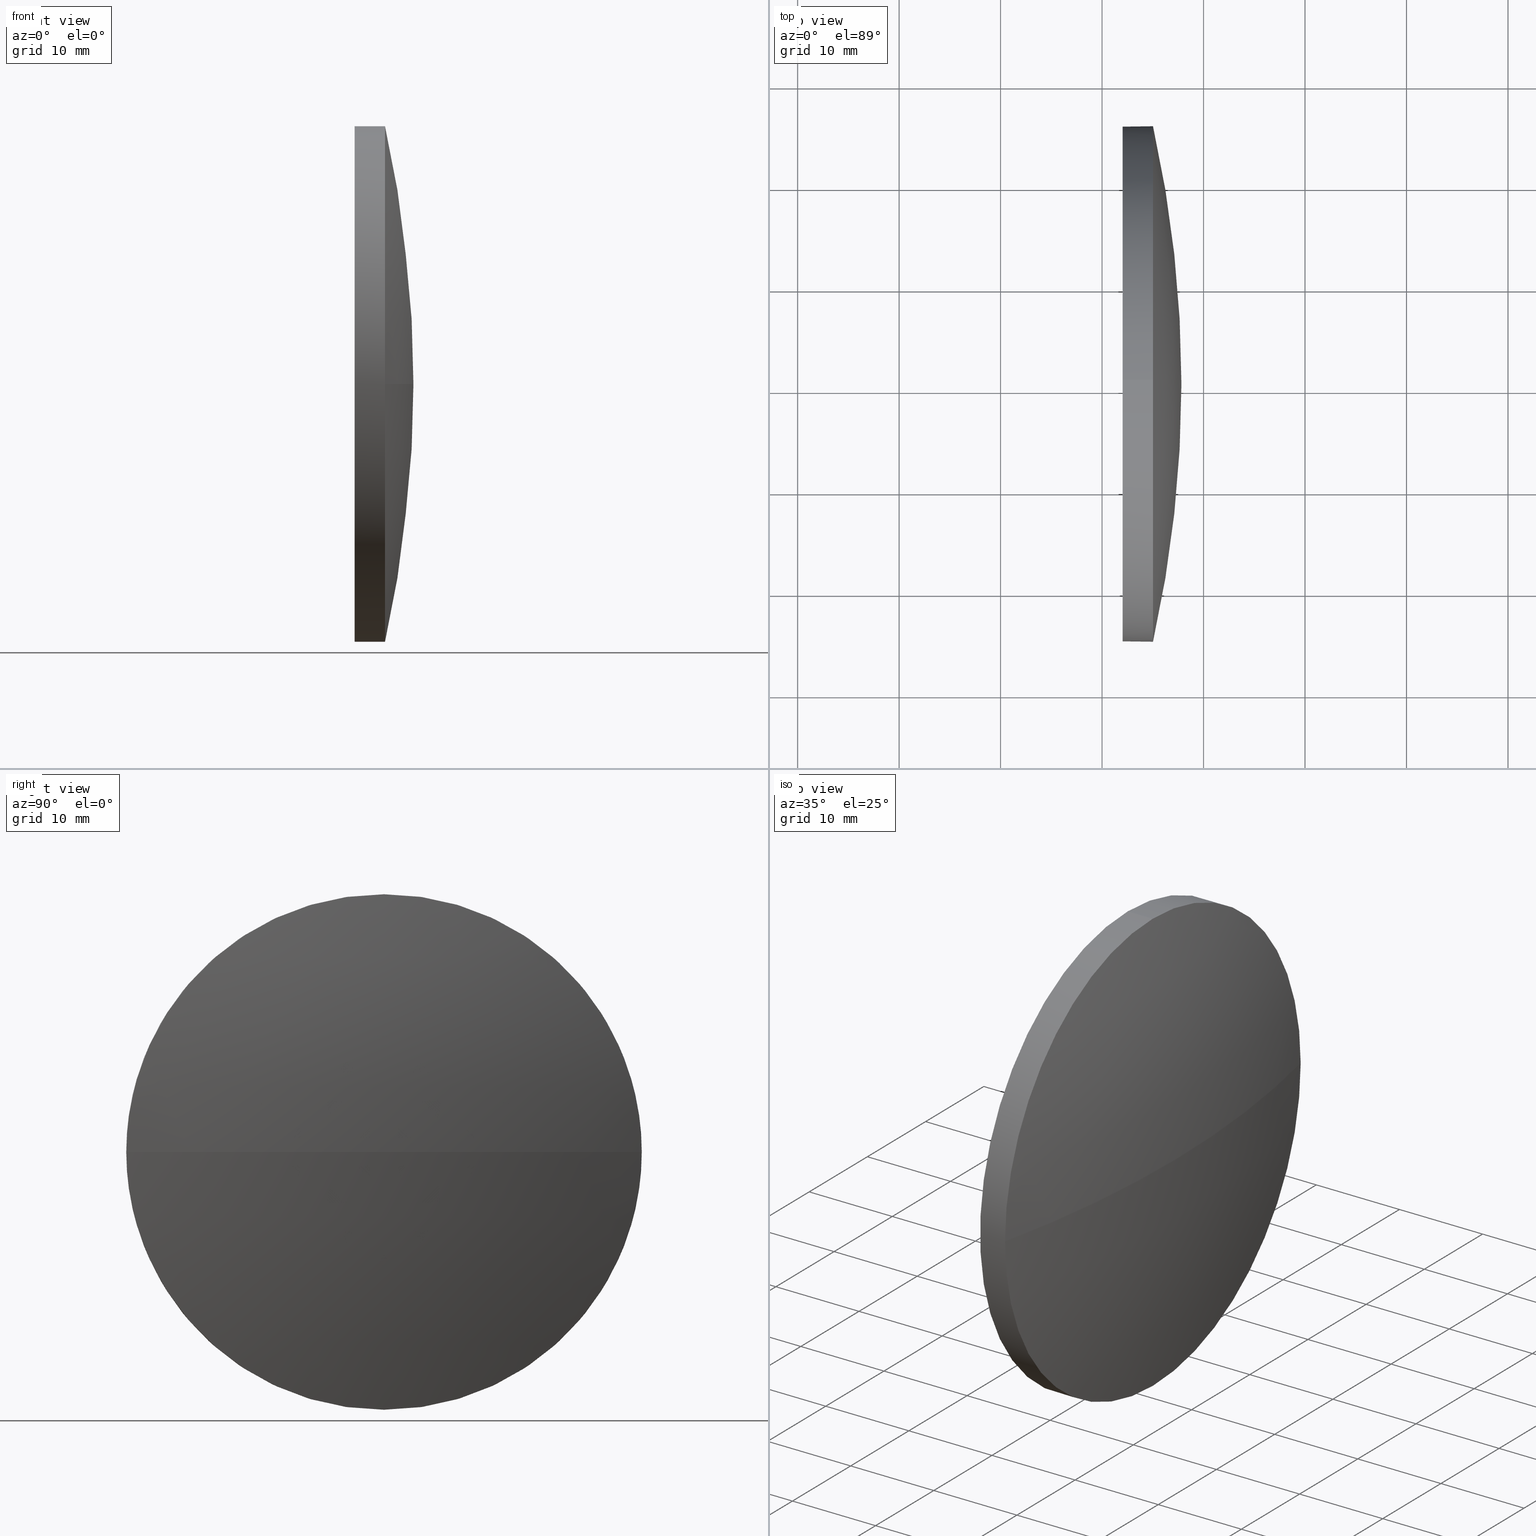
[diagram: canonical four-view strip — front | top / right | iso, engineering-drawing reading convention]
A machine part, canonical four-view strip (front | top / right | iso — engineering-drawing reading convention). The complete STEP part file that produces these views, byte-faithful:
ISO-10303-21;
HEADER;
FILE_DESCRIPTION (( 'STEP AP214' ),
    '1' );
FILE_NAME ('100389.STEP',
    '2019-06-05T01:56:00',
    ( '' ),
    ( '' ),
    'SwSTEP 2.0',
    'SolidWorks 2016',
    '' );
FILE_SCHEMA (( 'AUTOMOTIVE_DESIGN' ));
ENDSEC;

DATA;
#1 = CIRCLE ( 'NONE', #3, 25.40000000000000600 ) ;
#2 = CARTESIAN_POINT ( 'NONE',  ( 232.0208200792423800, 130.4671098528243900, 0.0000000000000000000 ) ) ;
#3 = AXIS2_PLACEMENT_3D ( 'NONE', #109, #163, #108 ) ;
#4 = DIRECTION ( 'NONE',  ( -1.000000000000000000, -0.0000000000000000000, -0.0000000000000000000 ) ) ;
#5 = CARTESIAN_POINT ( 'NONE',  ( 235.0208200792423800, 130.4671098528243900, 0.0000000000000000000 ) ) ;
#6 = DIRECTION ( 'NONE',  ( -1.000000000000000000, -0.0000000000000000000, -0.0000000000000000000 ) ) ;
#7 = EDGE_LOOP ( 'NONE', ( #86, #172, #168, #55 ) ) ;
#8 = ADVANCED_FACE ( 'NONE', ( #96 ), #65, .T. ) ;
#9 =( LENGTH_UNIT ( ) NAMED_UNIT ( * ) SI_UNIT ( .MILLI., .METRE. ) );
#10 = ADVANCED_FACE ( 'NONE', ( #133 ), #153, .T. ) ;
#11 = AXIS2_PLACEMENT_3D ( 'NONE', #5, #113, #161 ) ;
#12 = DIRECTION ( 'NONE',  ( -1.000000000000000000, -0.0000000000000000000, -0.0000000000000000000 ) ) ;
#13 = UNCERTAINTY_MEASURE_WITH_UNIT (LENGTH_MEASURE( 1.000000000000000100E-005 ), #9, 'distance_accuracy_value', 'NONE');
#14 = DIRECTION ( 'NONE',  ( 0.0000000000000000000, 0.0000000000000000000, 1.000000000000000000 ) ) ;
#15 =( NAMED_UNIT ( * ) PLANE_ANGLE_UNIT ( ) SI_UNIT ( $, .RADIAN. ) );
#16 = DIRECTION ( 'NONE',  ( -1.000000000000000000, -0.0000000000000000000, -0.0000000000000000000 ) ) ;
#17 = FACE_OUTER_BOUND ( 'NONE', #104, .T. ) ;
#18 = AXIS2_PLACEMENT_3D ( 'NONE', #2, #16, #93 ) ;
#19 = ORIENTED_EDGE ( 'NONE', *, *, #53, .F. ) ;
#20 = STYLED_ITEM ( 'NONE', ( #89 ), #88 ) ;
#21 = ADVANCED_FACE ( 'NONE', ( #17 ), #159, .F. ) ;
#22 = MECHANICAL_DESIGN_GEOMETRIC_PRESENTATION_REPRESENTATION (  '', ( #20 ), #31 ) ;
#23 = ORIENTED_EDGE ( 'NONE', *, *, #182, .F. ) ;
#24 = AXIS2_PLACEMENT_3D ( 'NONE', #150, #67, #122 ) ;
#25 = CARTESIAN_POINT ( 'NONE',  ( 121.2136772220999200, 130.4671098528243900, 0.0000000000000000000 ) ) ;
#26 = CARTESIAN_POINT ( 'NONE',  ( 220.3307464569769000, 130.4671098528243900, 0.0000000000000000000 ) ) ;
#27 = PRODUCT_DEFINITION_FORMATION_WITH_SPECIFIED_SOURCE ( '�κ�', '', #169, .NOT_KNOWN. ) ;
#28 = DIRECTION ( 'NONE',  ( -1.000000000000000000, -0.0000000000000000000, -0.0000000000000000000 ) ) ;
#29 = ORIENTED_EDGE ( 'NONE', *, *, #42, .T. ) ;
#30 = CARTESIAN_POINT ( 'NONE',  ( 235.0208200792423800, 130.4671098528243900, 0.0000000000000000000 ) ) ;
#31 =( GEOMETRIC_REPRESENTATION_CONTEXT ( 3 ) GLOBAL_UNCERTAINTY_ASSIGNED_CONTEXT ( ( #33 ) ) GLOBAL_UNIT_ASSIGNED_CONTEXT ( ( #124, #15, #174 ) ) REPRESENTATION_CONTEXT ( 'NONE', 'WORKASPACE' ) );
#32 = DIRECTION ( 'NONE',  ( 0.0000000000000000000, 0.0000000000000000000, 1.000000000000000000 ) ) ;
#33 = UNCERTAINTY_MEASURE_WITH_UNIT (LENGTH_MEASURE( 1.000000000000000100E-005 ), #124, 'distance_accuracy_value', 'NONE');
#34 = STYLED_ITEM ( 'NONE', ( #126 ), #158 ) ;
#35 =( NAMED_UNIT ( * ) PLANE_ANGLE_UNIT ( ) SI_UNIT ( $, .RADIAN. ) );
#36 =( GEOMETRIC_REPRESENTATION_CONTEXT ( 3 ) GLOBAL_UNCERTAINTY_ASSIGNED_CONTEXT ( ( #13 ) ) GLOBAL_UNIT_ASSIGNED_CONTEXT ( ( #9, #155, #181 ) ) REPRESENTATION_CONTEXT ( 'NONE', 'WORKASPACE' ) );
#37 = CIRCLE ( 'NONE', #49, 25.40000000000000600 ) ;
#38 = CIRCLE ( 'NONE', #11, 25.40000000000000600 ) ;
#39 = DIRECTION ( 'NONE',  ( 0.0000000000000000000, 1.000000000000000000, 0.0000000000000000000 ) ) ;
#40 = DIRECTION ( 'NONE',  ( 1.000000000000000000, 0.0000000000000000000, 0.0000000000000000000 ) ) ;
#41 = DIRECTION ( 'NONE',  ( 0.0000000000000000000, 0.0000000000000000000, 1.000000000000000000 ) ) ;
#42 = EDGE_CURVE ( 'NONE', #101, #144, #129, .T. ) ;
#43 = CARTESIAN_POINT ( 'NONE',  ( 220.3307464569769000, 130.4671098528243900, 0.0000000000000000000 ) ) ;
#44 = PRODUCT_DEFINITION_SHAPE ( 'NONE', 'NONE',  #184 ) ;
#45 = CARTESIAN_POINT ( 'NONE',  ( 220.3307464569769000, 130.4671098528243900, 25.40000000000000600 ) ) ;
#46 = PRESENTATION_LAYER_ASSIGNMENT (  '', '', ( #20 ) ) ;
#47 = FILL_AREA_STYLE_COLOUR ( '', #87 ) ;
#48 = LINE ( 'NONE', #78, #130 ) ;
#49 = AXIS2_PLACEMENT_3D ( 'NONE', #79, #4, #32 ) ;
#50 = DIRECTION ( 'NONE',  ( 0.0000000000000000000, 1.000000000000000000, 1.224646799147353000E-016 ) ) ;
#51 = FACE_OUTER_BOUND ( 'NONE', #134, .T. ) ;
#52 = SURFACE_SIDE_STYLE ('',( #149 ) ) ;
#53 = EDGE_CURVE ( 'NONE', #66, #58, #1, .T. ) ;
#54 = PRODUCT_DEFINITION_CONTEXT ( 'detailed design', #98, 'design' ) ;
#55 = ORIENTED_EDGE ( 'NONE', *, *, #114, .F. ) ;
#56 = DIRECTION ( 'NONE',  ( 0.0000000000000000000, 0.0000000000000000000, -1.000000000000000000 ) ) ;
#57 = EDGE_LOOP ( 'NONE', ( #183, #29, #147, #176, #112 ) ) ;
#58 = VERTEX_POINT ( 'NONE', #186 ) ;
#59 = AXIS2_PLACEMENT_3D ( 'NONE', #30, #28, #41 ) ;
#60 = VECTOR ( 'NONE', #121, 1000.000000000000000 ) ;
#61 = DIRECTION ( 'NONE',  ( 0.0000000000000000000, 1.000000000000000000, 0.0000000000000000000 ) ) ;
#62 = CARTESIAN_POINT ( 'NONE',  ( 121.2136772220999200, 130.4671098528243900, 0.0000000000000000000 ) ) ;
#63 = AXIS2_PLACEMENT_3D ( 'NONE', #64, #90, #14 ) ;
#64 = CARTESIAN_POINT ( 'NONE',  ( 235.0208200792423800, 130.4671098528243900, 0.0000000000000000000 ) ) ;
#65 = SPHERICAL_SURFACE ( 'NONE', #77, 116.6071428571424600 ) ;
#66 = VERTEX_POINT ( 'NONE', #173 ) ;
#67 = DIRECTION ( 'NONE',  ( -0.0000000000000000000, 0.0000000000000000000, 1.000000000000000000 ) ) ;
#68 =( NAMED_UNIT ( * ) SI_UNIT ( $, .STERADIAN. ) SOLID_ANGLE_UNIT ( ) );
#69 = SURFACE_STYLE_USAGE ( .BOTH. , #52 ) ;
#70 = EDGE_CURVE ( 'NONE', #144, #66, #38, .T. ) ;
#71 = PRODUCT_RELATED_PRODUCT_CATEGORY ( 'part', '', ( #169 ) ) ;
#72 = AXIS2_PLACEMENT_3D ( 'NONE', #62, #180, #50 ) ;
#73 = ORIENTED_EDGE ( 'NONE', *, *, #84, .T. ) ;
#74 = UNCERTAINTY_MEASURE_WITH_UNIT (LENGTH_MEASURE( 1.000000000000000100E-005 ), #97, 'distance_accuracy_value', 'NONE');
#75 = CIRCLE ( 'NONE', #63, 25.40000000000000600 ) ;
#76 = CYLINDRICAL_SURFACE ( 'NONE', #85, 25.40000000000000600 ) ;
#77 = AXIS2_PLACEMENT_3D ( 'NONE', #25, #131, #39 ) ;
#78 = CARTESIAN_POINT ( 'NONE',  ( 220.3307464569769000, 130.4671098528243900, -25.40000000000000600 ) ) ;
#79 = CARTESIAN_POINT ( 'NONE',  ( 232.0208200792423800, 130.4671098528243900, 0.0000000000000000000 ) ) ;
#80 = FILL_AREA_STYLE_COLOUR ( '', #128 ) ;
#81 = CARTESIAN_POINT ( 'NONE',  ( 237.8208200792423700, 130.4671098528243900, 0.0000000000000000000 ) ) ;
#82 = ORIENTED_EDGE ( 'NONE', *, *, #116, .T. ) ;
#83 = FILL_AREA_STYLE ('',( #80 ) ) ;
#84 = EDGE_CURVE ( 'NONE', #152, #103, #127, .T. ) ;
#85 = AXIS2_PLACEMENT_3D ( 'NONE', #43, #6, #148 ) ;
#86 = ORIENTED_EDGE ( 'NONE', *, *, #116, .F. ) ;
#87 = COLOUR_RGB ( '',1.000000000000000000, 1.000000000000000000, 1.000000000000000000 ) ;
#88 = MANIFOLD_SOLID_BREP ( '��ת1', #95 ) ;
#89 = PRESENTATION_STYLE_ASSIGNMENT (( #137 ) ) ;
#90 = DIRECTION ( 'NONE',  ( -1.000000000000000000, -0.0000000000000000000, -0.0000000000000000000 ) ) ;
#91 = CIRCLE ( 'NONE', #72, 116.6071428571424600 ) ;
#92 = CARTESIAN_POINT ( 'NONE',  ( 121.2136772220999200, 130.4671098528243900, 0.0000000000000000000 ) ) ;
#93 = DIRECTION ( 'NONE',  ( 0.0000000000000000000, 0.0000000000000000000, 1.000000000000000000 ) ) ;
#94 = SURFACE_SIDE_STYLE ('',( #119 ) ) ;
#95 = CLOSED_SHELL ( 'NONE', ( #10, #8, #117, #115, #21 ) ) ;
#96 = FACE_OUTER_BOUND ( 'NONE', #7, .T. ) ;
#97 =( LENGTH_UNIT ( ) NAMED_UNIT ( * ) SI_UNIT ( .MILLI., .METRE. ) );
#98 = APPLICATION_CONTEXT ( 'automotive_design' ) ;
#99 = APPLICATION_CONTEXT ( 'automotive_design' ) ;
#100 = AXIS2_PLACEMENT_3D ( 'NONE', #26, #12, #146 ) ;
#101 = VERTEX_POINT ( 'NONE', #140 ) ;
#102 = ORIENTED_EDGE ( 'NONE', *, *, #114, .T. ) ;
#103 = VERTEX_POINT ( 'NONE', #138 ) ;
#104 = EDGE_LOOP ( 'NONE', ( #73, #118 ) ) ;
#105 = MECHANICAL_DESIGN_GEOMETRIC_PRESENTATION_REPRESENTATION (  '', ( #34 ), #36 ) ;
#106 = SHAPE_DEFINITION_REPRESENTATION ( #44, #158 ) ;
#107 = DIRECTION ( 'NONE',  ( -1.000000000000000000, -0.0000000000000000000, -0.0000000000000000000 ) ) ;
#108 = DIRECTION ( 'NONE',  ( 0.0000000000000000000, 0.0000000000000000000, 1.000000000000000000 ) ) ;
#109 = CARTESIAN_POINT ( 'NONE',  ( 235.0208200792423800, 130.4671098528243900, 0.0000000000000000000 ) ) ;
#110 = ORIENTED_EDGE ( 'NONE', *, *, #84, .F. ) ;
#111 = CARTESIAN_POINT ( 'NONE',  ( 0.0000000000000000000, 0.0000000000000000000, 0.0000000000000000000 ) ) ;
#112 = ORIENTED_EDGE ( 'NONE', *, *, #170, .F. ) ;
#113 = DIRECTION ( 'NONE',  ( -1.000000000000000000, -0.0000000000000000000, -0.0000000000000000000 ) ) ;
#114 = EDGE_CURVE ( 'NONE', #58, #101, #75, .T. ) ;
#115 = ADVANCED_FACE ( 'NONE', ( #157 ), #76, .T. ) ;
#116 = EDGE_CURVE ( 'NONE', #139, #58, #145, .T. ) ;
#117 = ADVANCED_FACE ( 'NONE', ( #51 ), #185, .T. ) ;
#118 = ORIENTED_EDGE ( 'NONE', *, *, #170, .T. ) ;
#119 = SURFACE_STYLE_FILL_AREA ( #164 ) ;
#120 = AXIS2_PLACEMENT_3D ( 'NONE', #135, #40, #56 ) ;
#121 = DIRECTION ( 'NONE',  ( -1.000000000000000000, -0.0000000000000000000, -0.0000000000000000000 ) ) ;
#122 = DIRECTION ( 'NONE',  ( 1.000000000000000000, 0.0000000000000000000, 0.0000000000000000000 ) ) ;
#123 = DIRECTION ( 'NONE',  ( -0.0000000000000000000, 0.0000000000000000000, -1.000000000000000000 ) ) ;
#124 =( LENGTH_UNIT ( ) NAMED_UNIT ( * ) SI_UNIT ( .MILLI., .METRE. ) );
#125 = PRESENTATION_LAYER_ASSIGNMENT (  '', '', ( #34 ) ) ;
#126 = PRESENTATION_STYLE_ASSIGNMENT (( #69 ) ) ;
#127 = CIRCLE ( 'NONE', #18, 25.40000000000000600 ) ;
#128 = COLOUR_RGB ( '',1.000000000000000000, 1.000000000000000000, 1.000000000000000000 ) ;
#129 = CIRCLE ( 'NONE', #59, 25.40000000000000600 ) ;
#130 = VECTOR ( 'NONE', #107, 1000.000000000000000 ) ;
#131 = DIRECTION ( 'NONE',  ( -0.0000000000000000000, 0.0000000000000000000, -1.000000000000000000 ) ) ;
#132 = EDGE_CURVE ( 'NONE', #101, #103, #48, .T. ) ;
#133 = FACE_OUTER_BOUND ( 'NONE', #143, .T. ) ;
#134 = EDGE_LOOP ( 'NONE', ( #23, #82, #19, #156 ) ) ;
#135 = CARTESIAN_POINT ( 'NONE',  ( 232.0208200792423800, 130.4671098528243900, 0.0000000000000000000 ) ) ;
#136 = CARTESIAN_POINT ( 'NONE',  ( 232.0208200792423800, 130.4671098528243900, 25.40000000000000600 ) ) ;
#137 = SURFACE_STYLE_USAGE ( .BOTH. , #94 ) ;
#138 = CARTESIAN_POINT ( 'NONE',  ( 232.0208200792423800, 130.4671098528243900, -25.40000000000000600 ) ) ;
#139 = VERTEX_POINT ( 'NONE', #81 ) ;
#140 = CARTESIAN_POINT ( 'NONE',  ( 235.0208200792423800, 130.4671098528243900, -25.40000000000000600 ) ) ;
#141 = APPLICATION_PROTOCOL_DEFINITION ( 'draft international standard', 'automotive_design', 1998, #99 ) ;
#142 = EDGE_CURVE ( 'NONE', #66, #152, #179, .T. ) ;
#143 = EDGE_LOOP ( 'NONE', ( #102, #175, #110, #178, #171 ) ) ;
#144 = VERTEX_POINT ( 'NONE', #160 ) ;
#145 = CIRCLE ( 'NONE', #24, 116.6071428571424600 ) ;
#146 = DIRECTION ( 'NONE',  ( 0.0000000000000000000, 0.0000000000000000000, 1.000000000000000000 ) ) ;
#147 = ORIENTED_EDGE ( 'NONE', *, *, #70, .T. ) ;
#148 = DIRECTION ( 'NONE',  ( 0.0000000000000000000, 0.0000000000000000000, 1.000000000000000000 ) ) ;
#149 = SURFACE_STYLE_FILL_AREA ( #83 ) ;
#150 = CARTESIAN_POINT ( 'NONE',  ( 121.2136772220999200, 130.4671098528243900, 0.0000000000000000000 ) ) ;
#151 = AXIS2_PLACEMENT_3D ( 'NONE', #92, #123, #61 ) ;
#152 = VERTEX_POINT ( 'NONE', #136 ) ;
#153 = CYLINDRICAL_SURFACE ( 'NONE', #100, 25.40000000000000600 ) ;
#154 = DIRECTION ( 'NONE',  ( 0.0000000000000000000, 0.0000000000000000000, 1.000000000000000000 ) ) ;
#155 =( NAMED_UNIT ( * ) PLANE_ANGLE_UNIT ( ) SI_UNIT ( $, .RADIAN. ) );
#156 = ORIENTED_EDGE ( 'NONE', *, *, #70, .F. ) ;
#157 = FACE_OUTER_BOUND ( 'NONE', #57, .T. ) ;
#158 = ADVANCED_BREP_SHAPE_REPRESENTATION ( '100389', ( #88, #162 ), #177 ) ;
#159 = PLANE ( 'NONE',  #120 ) ;
#160 = CARTESIAN_POINT ( 'NONE',  ( 235.0208200792423800, 105.0671098528244200, -3.110602869834274100E-015 ) ) ;
#161 = DIRECTION ( 'NONE',  ( 0.0000000000000000000, 0.0000000000000000000, 1.000000000000000000 ) ) ;
#162 = AXIS2_PLACEMENT_3D ( 'NONE', #111, #154, #165 ) ;
#163 = DIRECTION ( 'NONE',  ( -1.000000000000000000, -0.0000000000000000000, -0.0000000000000000000 ) ) ;
#164 = FILL_AREA_STYLE ('',( #47 ) ) ;
#165 = DIRECTION ( 'NONE',  ( 1.000000000000000000, 0.0000000000000000000, 0.0000000000000000000 ) ) ;
#166 = APPLICATION_PROTOCOL_DEFINITION ( 'draft international standard', 'automotive_design', 1998, #98 ) ;
#167 = PRODUCT_CONTEXT ( 'NONE', #99, 'mechanical' ) ;
#168 = ORIENTED_EDGE ( 'NONE', *, *, #42, .F. ) ;
#169 = PRODUCT ( '100389', '100389', '', ( #167 ) ) ;
#170 = EDGE_CURVE ( 'NONE', #103, #152, #37, .T. ) ;
#171 = ORIENTED_EDGE ( 'NONE', *, *, #53, .T. ) ;
#172 = ORIENTED_EDGE ( 'NONE', *, *, #182, .T. ) ;
#173 = CARTESIAN_POINT ( 'NONE',  ( 235.0208200792423800, 130.4671098528243900, 25.40000000000000600 ) ) ;
#174 =( NAMED_UNIT ( * ) SI_UNIT ( $, .STERADIAN. ) SOLID_ANGLE_UNIT ( ) );
#175 = ORIENTED_EDGE ( 'NONE', *, *, #132, .T. ) ;
#176 = ORIENTED_EDGE ( 'NONE', *, *, #142, .T. ) ;
#177 =( GEOMETRIC_REPRESENTATION_CONTEXT ( 3 ) GLOBAL_UNCERTAINTY_ASSIGNED_CONTEXT ( ( #74 ) ) GLOBAL_UNIT_ASSIGNED_CONTEXT ( ( #97, #35, #68 ) ) REPRESENTATION_CONTEXT ( 'NONE', 'WORKASPACE' ) );
#178 = ORIENTED_EDGE ( 'NONE', *, *, #142, .F. ) ;
#179 = LINE ( 'NONE', #45, #60 ) ;
#180 = DIRECTION ( 'NONE',  ( 0.0000000000000000000, 1.224646799147353200E-016, -1.000000000000000000 ) ) ;
#181 =( NAMED_UNIT ( * ) SI_UNIT ( $, .STERADIAN. ) SOLID_ANGLE_UNIT ( ) );
#182 = EDGE_CURVE ( 'NONE', #139, #144, #91, .T. ) ;
#183 = ORIENTED_EDGE ( 'NONE', *, *, #132, .F. ) ;
#184 = PRODUCT_DEFINITION ( 'δ֪', '', #27, #54 ) ;
#185 = SPHERICAL_SURFACE ( 'NONE', #151, 116.6071428571424600 ) ;
#186 = CARTESIAN_POINT ( 'NONE',  ( 235.0208200792423800, 155.8671098528243700, 0.0000000000000000000 ) ) ;
ENDSEC;
END-ISO-10303-21;
